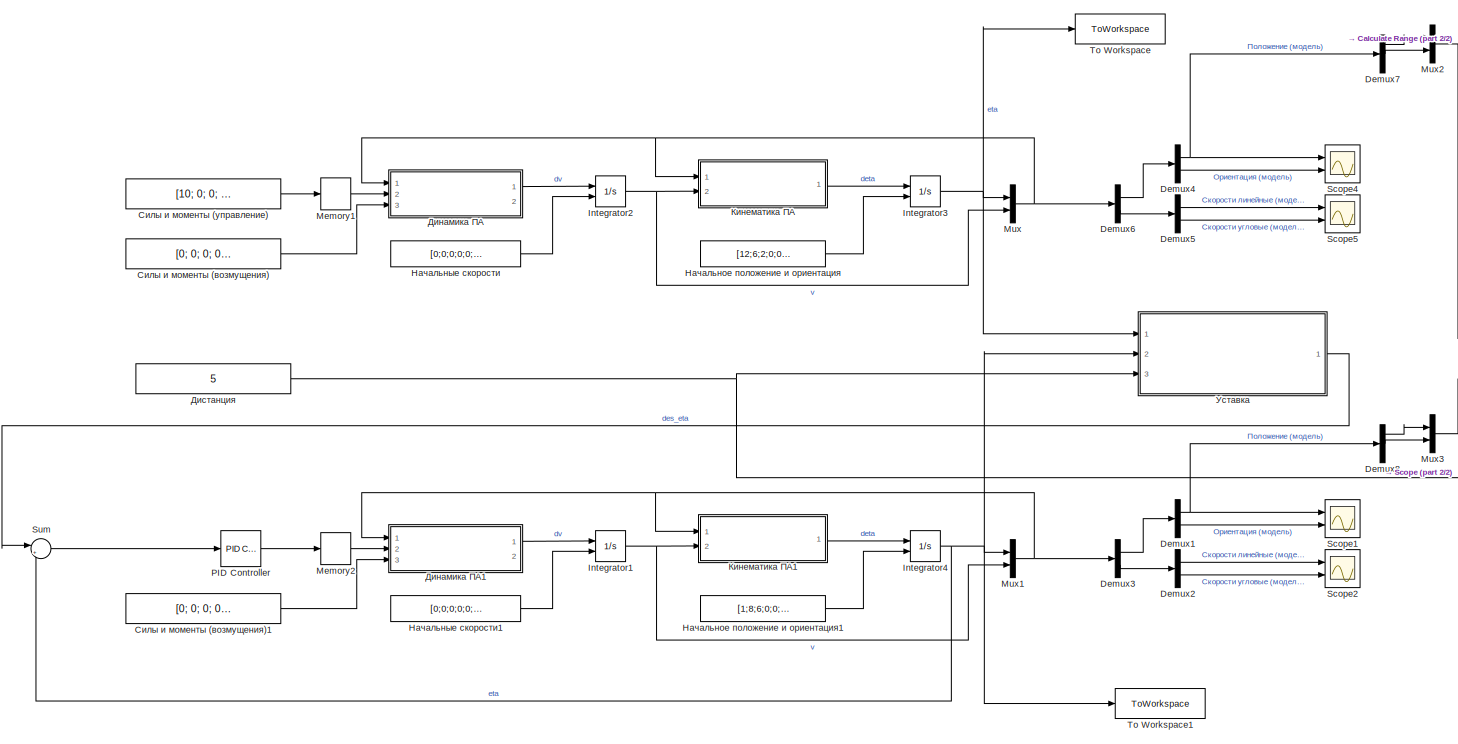
[diagram: root canvas - part 1/2, most of the canvas]
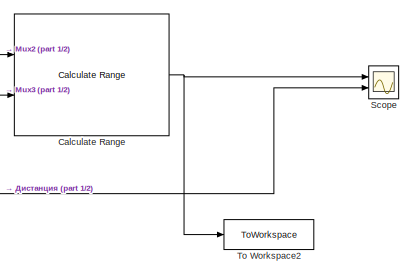
[diagram: root canvas - part 2/2, middle right region]
MODEL mdl_e68d2ac89963
KIND model
CONFIG AbsTol = auto
CONFIG EnableMultiTasking = off
CONFIG FixedStep = auto
CONFIG MaxStep = auto
CONFIG MinStep = auto
CONFIG RelTol = 1e-3
CONFIG SampleTimeConstraint = Unconstrained
CONFIG SolverName = VariableStepAuto
CONFIG StartTime = 0.0
CONFIG StopTime = 60
BLOCK [Reference] Calculate Range  REF=aerolibguid/Calculate
Range
  Ports = [2, 1]
  SourceBlock = aerolibguid/Calculate\nRange
  SourceProductBaseCode = AE
  SourceType = Calculate Range
BLOCK [Demux] Demux1
  Outputs = 2
  Ports = [1, 2]
BLOCK [Demux] Demux2
  Outputs = 2
  Ports = [1, 2]
BLOCK [Demux] Demux3
  Outputs = 2
  Ports = [1, 2]
BLOCK [Demux] Demux4
  Outputs = 2
  Ports = [1, 2]
BLOCK [Demux] Demux5
  Outputs = 2
  Ports = [1, 2]
BLOCK [Demux] Demux6
  Outputs = 2
  Ports = [1, 2]
BLOCK [Demux] Demux7
  Outputs = 3
  Ports = [1, 3]
BLOCK [Demux] Demux8
  Outputs = 3
  Ports = [1, 3]
BLOCK [Integrator] Integrator1
  InitialConditionSource = external
  LowerSaturationLimit = -1000
  Ports = [2, 1]
  UpperSaturationLimit = 1000
BLOCK [Integrator] Integrator2
  InitialConditionSource = external
  LowerSaturationLimit = -1000
  Ports = [2, 1]
  UpperSaturationLimit = 1000
BLOCK [Integrator] Integrator3
  InitialConditionSource = external
  LowerSaturationLimit = -1000
  Ports = [2, 1]
  UpperSaturationLimit = 1000
BLOCK [Integrator] Integrator4
  InitialConditionSource = external
  LowerSaturationLimit = -1000
  Ports = [2, 1]
  UpperSaturationLimit = 1000
BLOCK [Memory] Memory1
BLOCK [Memory] Memory2
BLOCK [Mux] Mux
  DisplayOption = bar
  Inputs = 2
  Ports = [2, 1]
BLOCK [Mux] Mux1
  DisplayOption = bar
  Inputs = 2
  Ports = [2, 1]
BLOCK [Mux] Mux2
  DisplayOption = bar
  Inputs = 2
  Ports = [2, 1]
BLOCK [Mux] Mux3
  DisplayOption = bar
  Inputs = 2
  Ports = [2, 1]
BLOCK [Reference] PID Controller  REF=slpidlib/PID Controller
  Ports = [1, 1]
  SourceBlock = slpidlib/PID Controller
  SourceProductBaseCode = SL
  SourceType = PID 1dof
BLOCK [Scope] Scope
  Floating = off
  NumInputPorts = 2
  Ports = [2]
  ScopeSpecificationString = Simulink.scopes.TimeScopeBlockCfg('CurrentConfiguration', extmgr.ConfigurationSet(extmgr.Configuration('Core','General UI',true),extmgr.Configuration('Core','Source UI',true),extmgr.Configuration('Sources','WiredSimulink',true,'DataLoggingVariableName','ScopeData3'),extmgr.Configuration('Visuals','Time Domain',true,'SerializedDisplays',{struct('MinYLimReal','1.84386','MaxYLimReal','12.21773','YLab...<+1430ch>
BLOCK [Scope] Scope1
  Floating = off
  NumInputPorts = 2
  Ports = [2]
  ScopeSpecificationString = Simulink.scopes.TimeScopeBlockCfg('CurrentConfiguration', extmgr.ConfigurationSet(extmgr.Configuration('Core','General UI',true,'FigureColor',[1 1 1]),extmgr.Configuration('Core','Source UI',true),extmgr.Configuration('Sources','WiredSimulink',true,'DataLoggingVariableName','ScopeData1','DataLogging',true,'DataLoggingSaveFormat','StructureWithTime'),extmgr.Configuration('Visuals','Time Domain',tru...<+2355ch>
BLOCK [Scope] Scope2
  Floating = off
  NumInputPorts = 2
  Ports = [2]
  ScopeSpecificationString = Simulink.scopes.TimeScopeBlockCfg('CurrentConfiguration', extmgr.ConfigurationSet(extmgr.Configuration('Core','General UI',true,'FigureColor',[1 1 1]),extmgr.Configuration('Core','Source UI',true),extmgr.Configuration('Sources','WiredSimulink',true,'DataLoggingVariableName','ScopeData2'),extmgr.Configuration('Visuals','Time Domain',true,'PlotType','Line','SerializedDisplays',{struct('MinYLimReal',...<+2221ch>
BLOCK [Scope] Scope4
  Floating = off
  NumInputPorts = 2
  Ports = [2]
  ScopeSpecificationString = Simulink.scopes.TimeScopeBlockCfg('CurrentConfiguration', extmgr.ConfigurationSet(extmgr.Configuration('Core','General UI',true,'FigureColor',[1 1 1]),extmgr.Configuration('Core','Source UI',true),extmgr.Configuration('Sources','WiredSimulink',true,'DataLoggingVariableName','ETA','DataLogging',true,'DataLoggingSaveFormat','StructureWithTime','SampleTime','0.01'),extmgr.Configuration('Visuals','Tim...<+2361ch>
BLOCK [Scope] Scope5
  Floating = off
  NumInputPorts = 2
  Ports = [2]
  ScopeSpecificationString = Simulink.scopes.TimeScopeBlockCfg('CurrentConfiguration', extmgr.ConfigurationSet(extmgr.Configuration('Core','General UI',true,'FigureColor',[1 1 1]),extmgr.Configuration('Core','Source UI',true),extmgr.Configuration('Sources','WiredSimulink',true,'DataLoggingVariableName','ScopeData4'),extmgr.Configuration('Visuals','Time Domain',true,'PlotType','Line','SerializedDisplays',{struct('MinYLimReal',...<+2221ch>
BLOCK [Sum] Sum
  Inputs = |+-
  Ports = [2, 1]
BLOCK [ToWorkspace] To Workspace
  FixptAsFi = on
  MaxDataPoints = inf
  Ports = [1]
  SampleTime = -1
  Save2DSignal = 2-D array (concatenate along first dimension)
  VariableName = eta_L
BLOCK [ToWorkspace] To Workspace1
  FixptAsFi = on
  MaxDataPoints = inf
  Ports = [1]
  SampleTime = -1
  Save2DSignal = 2-D array (concatenate along first dimension)
  VariableName = eta_F
BLOCK [ToWorkspace] To Workspace2
  FixptAsFi = on
  MaxDataPoints = inf
  Ports = [1]
  SampleTime = -1
  Save2DSignal = 2-D array (concatenate along first dimension)
  VariableName = range
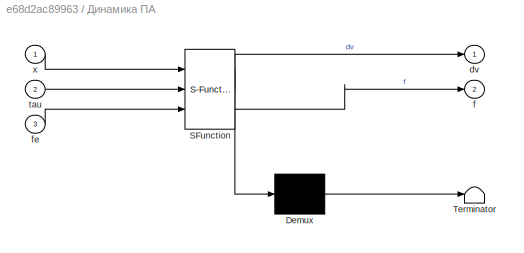
BLOCK [SubSystem] Динамика ПА
  ErrorFcn = Stateflow.Translate.translate
  PermitHierarchicalResolution = ExplicitOnly
  Ports = [3, 2]
  RequestExecContextInheritance = off
  SFBlockType = MATLAB Function
  TreatAsAtomicUnit = on
BLOCK [Demux] Динамика ПА/ Demux 
  Outputs = 1
  Ports = [1, 1]
BLOCK [S-Function] Динамика ПА/ SFunction 
  EnableBusSupport = on
  FunctionName = sf_sfun
  Parameters = B,D_LIN,D_QUAD,I0,M_A,W,m,r_b_b,r_g_b
  PortCounts = [3 3]
  Ports = [3, 3]
  SFcnIsStateOwnerBlock = off
  SFunctionDeploymentMode = off
  Tag = Stateflow S-Function 3
BLOCK [Terminator] Динамика ПА/ Terminator 
BLOCK [Outport] Динамика ПА/dv
BLOCK [Outport] Динамика ПА/f
  Port = 2
BLOCK [Inport] Динамика ПА/fe
  Port = 3
BLOCK [Inport] Динамика ПА/tau
  Port = 2
BLOCK [Inport] Динамика ПА/x
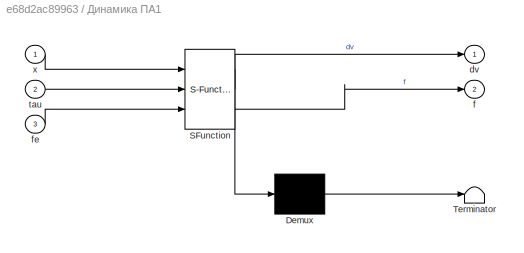
BLOCK [SubSystem] Динамика ПА1
  ErrorFcn = Stateflow.Translate.translate
  PermitHierarchicalResolution = ExplicitOnly
  Ports = [3, 2]
  RequestExecContextInheritance = off
  SFBlockType = MATLAB Function
  TreatAsAtomicUnit = on
BLOCK [Demux] Динамика ПА1/ Demux 
  Outputs = 1
  Ports = [1, 1]
BLOCK [S-Function] Динамика ПА1/ SFunction 
  EnableBusSupport = on
  FunctionName = sf_sfun
  Parameters = B,D_LIN,D_QUAD,I0,M_A,W,m,r_b_b,r_g_b
  PortCounts = [3 3]
  Ports = [3, 3]
  SFcnIsStateOwnerBlock = off
  SFunctionDeploymentMode = off
  Tag = Stateflow S-Function 1
BLOCK [Terminator] Динамика ПА1/ Terminator 
BLOCK [Outport] Динамика ПА1/dv
BLOCK [Outport] Динамика ПА1/f
  Port = 2
BLOCK [Inport] Динамика ПА1/fe
  Port = 3
BLOCK [Inport] Динамика ПА1/tau
  Port = 2
BLOCK [Inport] Динамика ПА1/x
BLOCK [Constant] Дистанция
  Value = 5
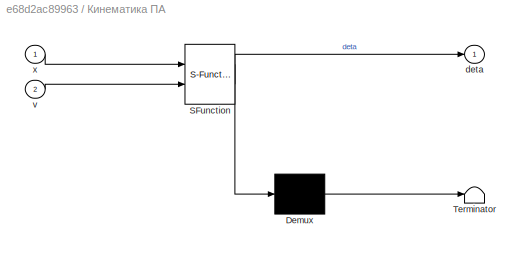
BLOCK [SubSystem] Кинематика ПА
  ErrorFcn = Stateflow.Translate.translate
  PermitHierarchicalResolution = ExplicitOnly
  Ports = [2, 1]
  RequestExecContextInheritance = off
  SFBlockType = MATLAB Function
  TreatAsAtomicUnit = on
BLOCK [Demux] Кинематика ПА/ Demux 
  Outputs = 1
  Ports = [1, 1]
BLOCK [S-Function] Кинематика ПА/ SFunction 
  EnableBusSupport = on
  FunctionName = sf_sfun
  PortCounts = [2 2]
  Ports = [2, 2]
  SFcnIsStateOwnerBlock = off
  SFunctionDeploymentMode = off
  Tag = Stateflow S-Function 6
BLOCK [Terminator] Кинематика ПА/ Terminator 
BLOCK [Outport] Кинематика ПА/deta
BLOCK [Inport] Кинематика ПА/v
  Port = 2
BLOCK [Inport] Кинематика ПА/x
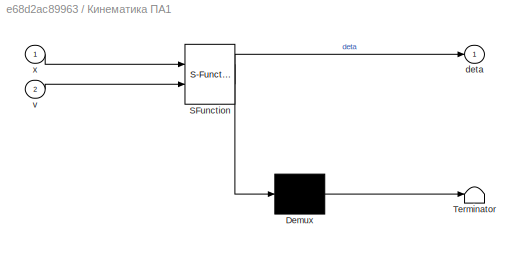
BLOCK [SubSystem] Кинематика ПА1
  ErrorFcn = Stateflow.Translate.translate
  PermitHierarchicalResolution = ExplicitOnly
  Ports = [2, 1]
  RequestExecContextInheritance = off
  SFBlockType = MATLAB Function
  TreatAsAtomicUnit = on
BLOCK [Demux] Кинематика ПА1/ Demux 
  Outputs = 1
  Ports = [1, 1]
BLOCK [S-Function] Кинематика ПА1/ SFunction 
  EnableBusSupport = on
  FunctionName = sf_sfun
  PortCounts = [2 2]
  Ports = [2, 2]
  SFcnIsStateOwnerBlock = off
  SFunctionDeploymentMode = off
  Tag = Stateflow S-Function 2
BLOCK [Terminator] Кинематика ПА1/ Terminator 
BLOCK [Outport] Кинематика ПА1/deta
BLOCK [Inport] Кинематика ПА1/v
  Port = 2
BLOCK [Inport] Кинематика ПА1/x
BLOCK [Constant] Начальное положение и ориентация
  Value = [12;6;2;0;0;pi/8]
BLOCK [Constant] Начальное положение и ориентация1
  Value = [1;8;6;0;0;0]
BLOCK [Constant] Начальные скорости
  Value = [0;0;0;0;0;0]
BLOCK [Constant] Начальные скорости1
  Value = [0;0;0;0;0;0]
BLOCK [Constant] Силы и моменты (возмущения)
  Value = [0; 0; 0; 0; 0; 0]
BLOCK [Constant] Силы и моменты (возмущения)1
  Value = [0; 0; 0; 0; 0; 0]
BLOCK [Constant] Силы и моменты (управление)
  Value = [10; 0; 0; 0; 0; 0]
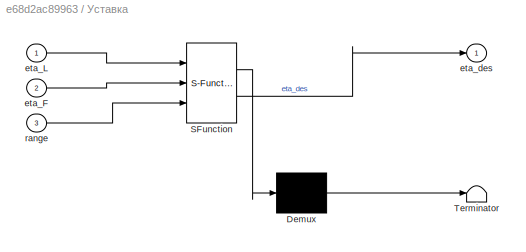
BLOCK [SubSystem] Уставка
  ErrorFcn = Stateflow.Translate.translate
  PermitHierarchicalResolution = ExplicitOnly
  Ports = [3, 1]
  RequestExecContextInheritance = off
  SFBlockType = MATLAB Function
  TreatAsAtomicUnit = on
BLOCK [Demux] Уставка/ Demux 
  Outputs = 1
  Ports = [1, 1]
BLOCK [S-Function] Уставка/ SFunction 
  EnableBusSupport = on
  FunctionName = sf_sfun
  PortCounts = [3 2]
  Ports = [3, 2]
  SFcnIsStateOwnerBlock = off
  SFunctionDeploymentMode = off
  Tag = Stateflow S-Function 4
BLOCK [Terminator] Уставка/ Terminator 
BLOCK [Inport] Уставка/eta_F
  Port = 2
BLOCK [Inport] Уставка/eta_L
BLOCK [Outport] Уставка/eta_des
BLOCK [Inport] Уставка/range
  Port = 3
NET Calculate Range:1 -> Scope:1, To Workspace2:1
NET Demux1:1 -> Demux8:1, Scope1:1
LINE Demux1:2 -> Scope1:2
LINE Demux2:1 -> Scope2:1
LINE Demux2:2 -> Scope2:2
LINE Demux3:1 -> Demux1:1
LINE Demux3:2 -> Demux2:1
NET Demux4:1 -> Demux7:1, Scope4:1
LINE Demux4:2 -> Scope4:2
LINE Demux5:1 -> Scope5:1
LINE Demux5:2 -> Scope5:2
LINE Demux6:1 -> Demux4:1
LINE Demux6:2 -> Demux5:1
LINE Demux7:1 -> Mux2:1
LINE Demux7:2 -> Mux2:2
LINE Demux8:1 -> Mux3:1
LINE Demux8:2 -> Mux3:2
NET Integrator1:1 -> Mux1:2, Кинематика ПА1:2
NET Integrator2:1 -> Mux:2, Кинематика ПА:2
NET Integrator3:1 -> Mux:1, To Workspace:1, Уставка:1
NET Integrator4:1 -> Mux1:1, Sum:2, To Workspace1:1, Уставка:2
LINE Memory1:1 -> Динамика ПА:2
LINE Memory2:1 -> Динамика ПА1:2
NET Mux1:1 -> Demux3:1, Динамика ПА1:1, Кинематика ПА1:1
LINE Mux2:1 -> Calculate Range:1
LINE Mux3:1 -> Calculate Range:2
NET Mux:1 -> Demux6:1, Динамика ПА:1, Кинематика ПА:1
LINE PID Controller:1 -> Memory2:1
LINE Sum:1 -> PID Controller:1
LINE Динамика ПА1:1 -> Integrator1:1
LINE Динамика ПА:1 -> Integrator2:1
NET Дистанция:1 -> Scope:2, Уставка:3
LINE Кинематика ПА1:1 -> Integrator4:1
LINE Кинематика ПА:1 -> Integrator3:1
LINE Начальное положение и ориентация1:1 -> Integrator4:2
LINE Начальное положение и ориентация:1 -> Integrator3:2
LINE Начальные скорости1:1 -> Integrator1:2
LINE Начальные скорости:1 -> Integrator2:2
LINE Силы и моменты (возмущения)1:1 -> Динамика ПА1:3
LINE Силы и моменты (возмущения):1 -> Динамика ПА:3
LINE Силы и моменты (управление):1 -> Memory1:1
LINE Уставка:1 -> Sum:1
note: NET lines group one-source signal fan-out (src -> all destinations, sorted); 1:1 wires keep LINE
CHART Динамика ПА1 states=1 transitions=1
  STATE_LABEL 'eML_blk_kernel()'
  STATE_LABEL 'SCRIPT:\nfunction [dv, f] = VehicleDynamics(x, tau, fe, I0, r_g_b, m, r_b_b, M_A, D_LIN, D_QUAD, B, W)\nn = 6;\neta = x(1:n); \nv = x(7:end);\n\n%% ВСПОМОГАТЕЛЬНЫЕ ФУНКЦИИ\n% преобразование в кососимметричную матрицу\nS = @(x)([ 0 -x(3) x(2); x(3) 0 -x(1); -x(2) x(1) 0 ]); \n\n%% РАСЧЕТ ЯКОБИАНА\nJ_k_o = @(eta)[ 1  0           -sin(eta(5)); ...\n                0  cos(eta(4))  cos(eta(5))*sin(eta(4)); ...\n   ...<+2069ch>'
CHART Кинематика ПА1 states=1 transitions=1
  STATE_LABEL 'eML_blk_kernel()'
  STATE_LABEL 'SCRIPT:\nfunction deta = VeicleKinematics(x, v)\nn = 6;\neta = x(1:n);\n\n%% РАСЧЕТ ЯКОБИАНА\nJ_k_o = [ 1  0           -sin(eta(5)); ...\n          0  cos(eta(4))  cos(eta(5))*sin(eta(4)); ...\n          0 -sin(eta(4))  cos(eta(5))*cos(eta(4)) ];\nR_I_B = [ cos(eta(6))*cos(eta(5))                                         sin(eta(6))*cos(eta(5))                                        -sin(eta(5)); ...\n      ...<+398ch>'
CHART Динамика ПА states=1 transitions=1
  STATE_LABEL 'eML_blk_kernel()'
  STATE_LABEL 'SCRIPT:\nfunction [dv, f] = VehicleDynamics(x, tau, fe, I0, r_g_b, m, r_b_b, M_A, D_LIN, D_QUAD, B, W)\nn = 6;\neta = x(1:n); \nv = x(7:end);\n\n%% ВСПОМОГАТЕЛЬНЫЕ ФУНКЦИИ\n% преобразование в кососимметричную матрицу\nS = @(x)([ 0 -x(3) x(2); x(3) 0 -x(1); -x(2) x(1) 0 ]); \n\n%% РАСЧЕТ ЯКОБИАНА\nJ_k_o = @(eta)[ 1  0           -sin(eta(5)); ...\n                0  cos(eta(4))  cos(eta(5))*sin(eta(4)); ...\n   ...<+2069ch>'
CHART Уставка states=1 transitions=1
  STATE_LABEL 'eML_blk_kernel()'
  STATE_LABEL 'SCRIPT:\nfunction eta_des = DesiredETA(eta_L, eta_F, range)\nx1 = eta_L(1) + (range * (eta_F(1) - eta_L(1))) / sqrt( (eta_F(1) - eta_L(1))^2 + (eta_F(2) - eta_L(2))^2 );\nx2 = eta_L(1) - (range * (eta_F(1) - eta_L(1))) / sqrt( (eta_F(1) - eta_L(1))^2 + (eta_F(2) - eta_L(2))^2 );\n\ny1 = eta_L(2) + (range * (eta_F(1) - eta_L(1))) / sqrt( (eta_F(1) - eta_L(1))^2 + (eta_F(2) - eta_L(2))^2 );\ny2 = eta_L(2)...<+362ch>'
CHART Кинематика ПА states=1 transitions=1
  STATE_LABEL 'eML_blk_kernel()'
  STATE_LABEL 'SCRIPT:\nfunction deta = VeicleKinematics(x, v)\nn = 6;\neta = x(1:n);\n\n%% РАСЧЕТ ЯКОБИАНА\nJ_k_o = [ 1  0           -sin(eta(5)); ...\n          0  cos(eta(4))  cos(eta(5))*sin(eta(4)); ...\n          0 -sin(eta(4))  cos(eta(5))*cos(eta(4)) ];\nR_I_B = [ cos(eta(6))*cos(eta(5))                                         sin(eta(6))*cos(eta(5))                                        -sin(eta(5)); ...\n      ...<+398ch>'
CHART  states=0 transitions=0
CHART  states=0 transitions=0
CHART  states=0 transitions=0
CHART  states=0 transitions=0
CHART  states=0 transitions=0
